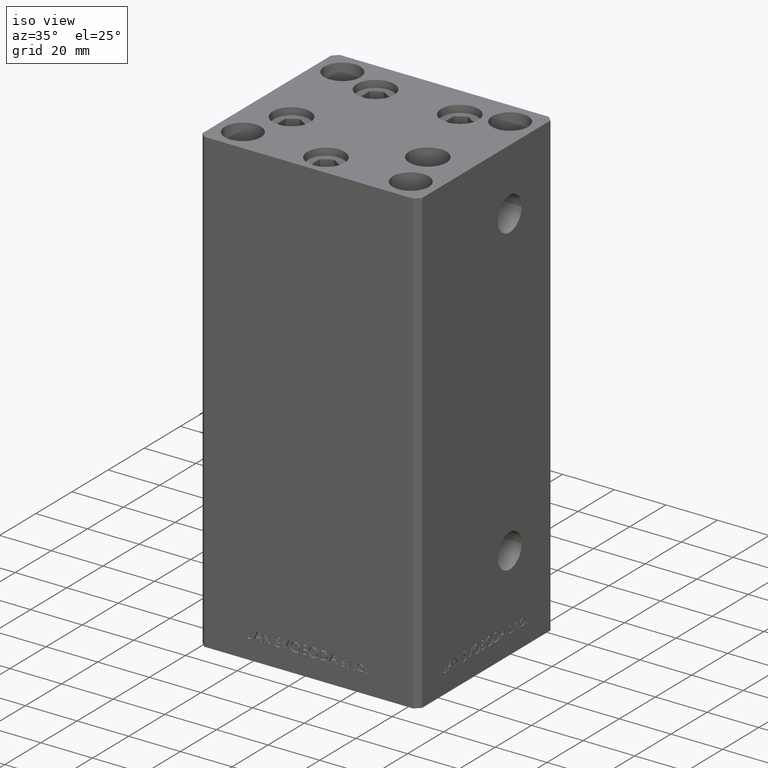
[diagram: clean part render]
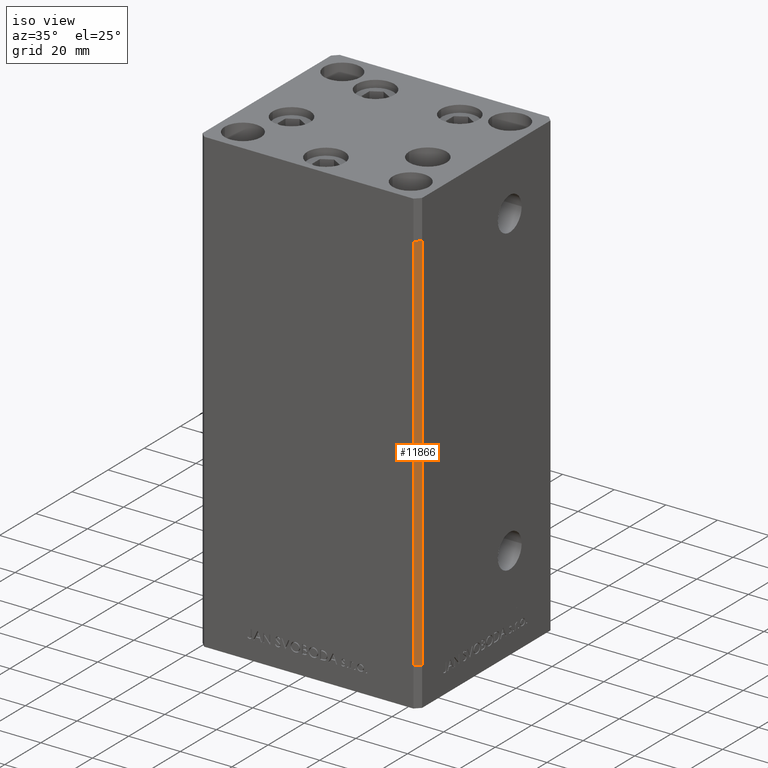
[diagram: same view with one face highlighted and labeled with its STEP entity id]
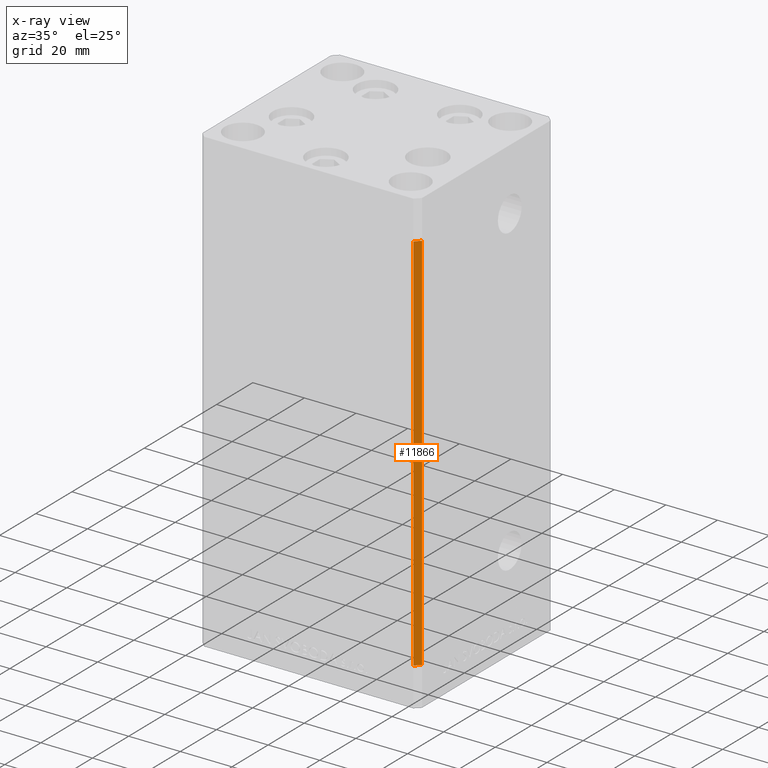
[diagram: x-ray of the same camera — body ghosted, the highlighted face saturated]
A machine part, iso view. The second image highlights one B-rep face of the part: STEP entity #11866.
The next image is the same camera in x-ray: the body ghosted, the highlighted face saturated — about 0% of this face is hidden behind the body in this view.
In plain terms, the highlighted planar face has unit normal (0.7071, -0.7071, 0).
Its self-contained STEP definition (entity closure, byte-faithful):
#98 = DIRECTION ( 'NONE',  ( -0.7071067811865474617, -0.7071067811865474617, 0.000000000000000000 ) ) ;
#636 = FACE_OUTER_BOUND ( 'NONE', #28929, .T. ) ;
#1931 = ORIENTED_EDGE ( 'NONE', *, *, #21453, .F. ) ;
#3162 = ORIENTED_EDGE ( 'NONE', *, *, #37478, .T. ) ;
#4356 = VECTOR ( 'NONE', #45698, 1000.000000000000114 ) ;
#6288 = ORIENTED_EDGE ( 'NONE', *, *, #33379, .F. ) ;
#6342 = LINE ( 'NONE', #26651, #4356 ) ;
#8690 = VERTEX_POINT ( 'NONE', #23055 ) ;
#9843 = DIRECTION ( 'NONE',  ( -0.000000000000000000, -0.000000000000000000, -1.000000000000000000 ) ) ;
#11866 = ADVANCED_FACE ( 'NONE', ( #636 ), #49997, .T. ) ;
#12714 = AXIS2_PLACEMENT_3D ( 'NONE', #49212, #20956, #16741 ) ;
#16741 = DIRECTION ( 'NONE',  ( 0.7071067811865474617, 0.7071067811865474617, 0.000000000000000000 ) ) ;
#20956 = DIRECTION ( 'NONE',  ( 0.7071067811865475727, -0.7071067811865475727, 0.000000000000000000 ) ) ;
#21090 = VERTEX_POINT ( 'NONE', #23911 ) ;
#21148 = CARTESIAN_POINT ( 'NONE',  ( 40.49999999999998579, -37.50000000000000711, 148.5000000000000000 ) ) ;
#21453 = EDGE_CURVE ( 'NONE', #21090, #8690, #37027, .T. ) ;
#23055 = CARTESIAN_POINT ( 'NONE',  ( 40.49999999999998579, -37.50000000000000711, 0.000000000000000000 ) ) ;
#23554 = VERTEX_POINT ( 'NONE', #30463 ) ;
#23911 = CARTESIAN_POINT ( 'NONE',  ( 42.49999999999998579, -35.50000000000000711, 0.000000000000000000 ) ) ;
#24111 = CARTESIAN_POINT ( 'NONE',  ( 42.49999999999998579, -35.50000000000000711, 0.000000000000000000 ) ) ;
#24263 = CARTESIAN_POINT ( 'NONE',  ( 40.49999999999998579, -37.50000000000000711, 148.5000000000000000 ) ) ;
#26651 = CARTESIAN_POINT ( 'NONE',  ( 42.49999999999998579, -35.50000000000000711, 148.5000000000000000 ) ) ;
#28929 = EDGE_LOOP ( 'NONE', ( #1931, #6288, #39277, #3162 ) ) ;
#30463 = CARTESIAN_POINT ( 'NONE',  ( 42.49999999999998579, -35.50000000000000711, 148.5000000000000000 ) ) ;
#30695 = CARTESIAN_POINT ( 'NONE',  ( 42.49999999999998579, -35.50000000000000711, 148.5000000000000000 ) ) ;
#33379 = EDGE_CURVE ( 'NONE', #23554, #21090, #38355, .T. ) ;
#33800 = LINE ( 'NONE', #21148, #44866 ) ;
#35926 = VECTOR ( 'NONE', #98, 1000.000000000000114 ) ;
#37027 = LINE ( 'NONE', #24111, #35926 ) ;
#37478 = EDGE_CURVE ( 'NONE', #49733, #8690, #33800, .T. ) ;
#37502 = DIRECTION ( 'NONE',  ( -0.000000000000000000, -0.000000000000000000, -1.000000000000000000 ) ) ;
#38355 = LINE ( 'NONE', #30695, #43005 ) ;
#39277 = ORIENTED_EDGE ( 'NONE', *, *, #42608, .T. ) ;
#42608 = EDGE_CURVE ( 'NONE', #23554, #49733, #6342, .T. ) ;
#43005 = VECTOR ( 'NONE', #9843, 1000.000000000000000 ) ;
#44866 = VECTOR ( 'NONE', #37502, 1000.000000000000000 ) ;
#45698 = DIRECTION ( 'NONE',  ( -0.7071067811865474617, -0.7071067811865474617, 0.000000000000000000 ) ) ;
#49212 = CARTESIAN_POINT ( 'NONE',  ( 42.49999999999998579, -35.50000000000000711, 148.5000000000000000 ) ) ;
#49733 = VERTEX_POINT ( 'NONE', #24263 ) ;
#49997 = PLANE ( 'NONE',  #12714 ) ;